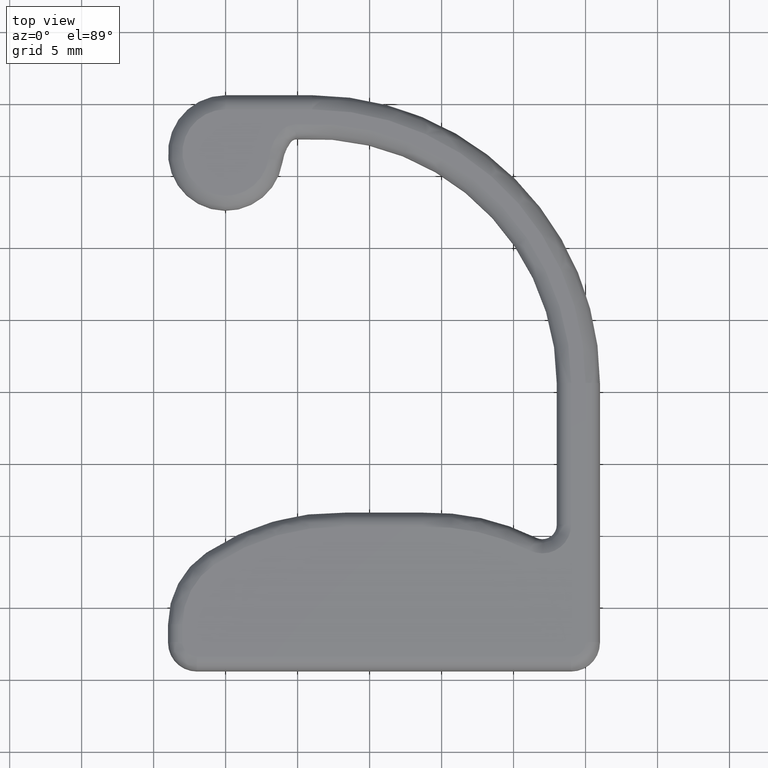
[diagram: clean part render]
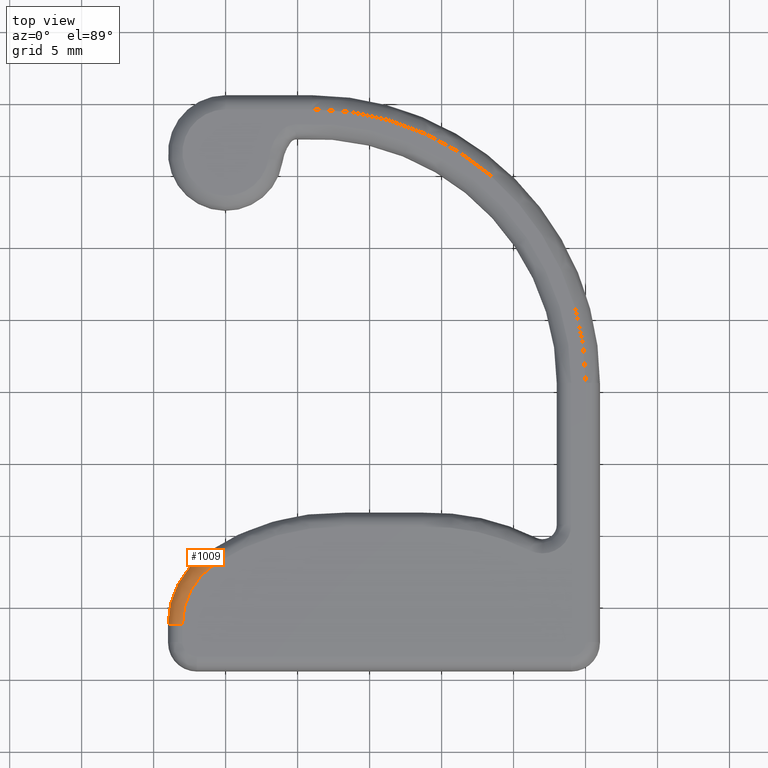
[diagram: same view with one face highlighted and labeled with its STEP entity id]
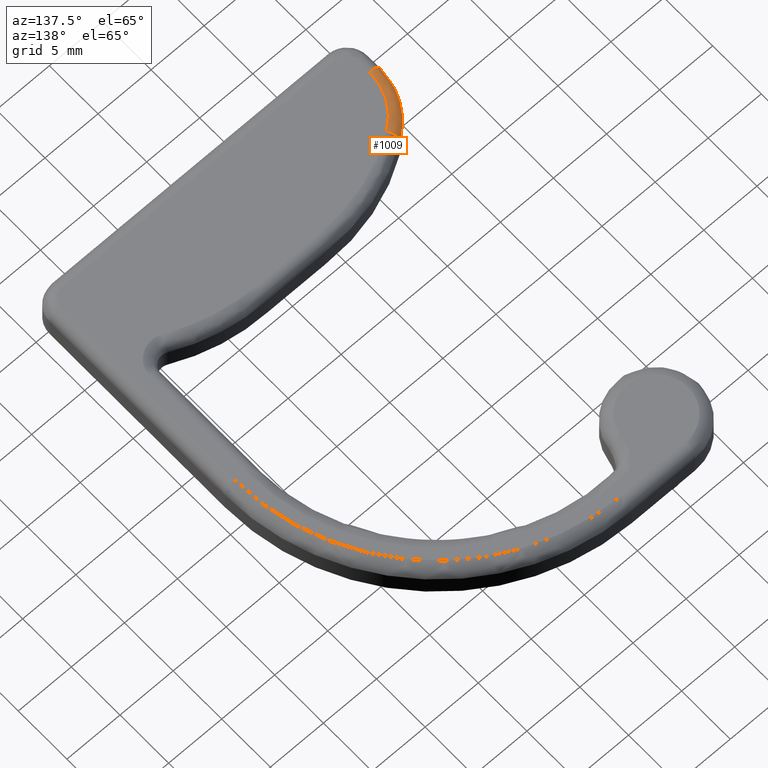
[diagram: same view with one face highlighted and labeled with its STEP entity id]
A machine part, top view. The second image highlights one B-rep face of the part: STEP entity #1009.
A second angle (auxiliary view) of the same face is appended — the face is thin or edge-on in the first view.
In plain terms, the highlighted face is a freeform B-spline surface patch.
Its self-contained STEP definition (entity closure, byte-faithful):
#394=CARTESIAN_POINT('',(-1.348833711089782,3.710987867078075,2.0));
#395=VERTEX_POINT('',#394);
#403=CARTESIAN_POINT('',(-0.790694796352597,2.881240344119419,3.0));
#404=VERTEX_POINT('',#403);
#405=CARTESIAN_POINT('',(-0.790694796351432,2.881240344117601,2.0));
#406=DIRECTION('',(0.829747522958657,0.558138914737158,0.0));
#407=DIRECTION('',(-0.558138914737158,0.829747522958657,0.0));
#408=AXIS2_PLACEMENT_3D('',#405,#406,#407);
#409=CIRCLE('',#408,0.999999999999998);
#410=EDGE_CURVE('',#395,#404,#409,.T.);
#429=CARTESIAN_POINT('',(-3.000000222665562,-1.267496392306725,3.0));
#430=VERTEX_POINT('',#429);
#431=CARTESIAN_POINT('',(1.999999777334381,-1.267497270675676,3.0));
#432=DIRECTION('',(0.0,0.0,1.0));
#433=DIRECTION('',(1.0,0.0,0.0));
#434=AXIS2_PLACEMENT_3D('',#431,#432,#433);
#435=CIRCLE('',#434,5.000000000000002);
#436=EDGE_CURVE('',#404,#430,#435,.T.);
#895=CARTESIAN_POINT('',(-4.000000222665562,-1.267496216632935,2.0));
#896=VERTEX_POINT('',#895);
#919=CARTESIAN_POINT('',(1.999999777334381,-1.267497270675676,2.0));
#920=DIRECTION('',(0.0,0.0,1.0));
#921=DIRECTION('',(1.0,0.0,0.0));
#922=AXIS2_PLACEMENT_3D('',#919,#920,#921);
#923=CIRCLE('',#922,6.000000000000002);
#924=EDGE_CURVE('',#395,#896,#923,.T.);
#947=CARTESIAN_POINT('',(-1.348833711088576,3.710987867076264,2.0));
#948=CARTESIAN_POINT('',(-1.348833711088576,3.710987867076264,2.130060214677419));
#949=CARTESIAN_POINT('',(-1.319788845063066,3.667808821496395,2.393027817343275));
#950=CARTESIAN_POINT('',(-1.195575971497251,3.483149910534511,2.725412911472946));
#951=CARTESIAN_POINT('',(-1.010058915784909,3.207354202012036,2.947961223884222));
#952=CARTESIAN_POINT('',(-0.863286463421957,2.989157485081664,3.0));
#953=CARTESIAN_POINT('',(-0.790694796351421,2.881240344117605,3.0));
#954=CARTESIAN_POINT('',(-1.753840066935068,3.438555830029886,2.0));
#955=CARTESIAN_POINT('',(-1.753840066935068,3.438555830029886,2.130060214677419));
#956=CARTESIAN_POINT('',(-1.721282528396663,3.397739622747122,2.393027817343275));
#957=CARTESIAN_POINT('',(-1.582047407995936,3.223185593467143,2.725412911472946));
#958=CARTESIAN_POINT('',(-1.374094006331735,2.962481942990934,2.947961223884222));
#959=CARTESIAN_POINT('',(-1.209570962225218,2.756225359339140,3.0));
#960=CARTESIAN_POINT('',(-1.128200092890163,2.654213646578957,3.0));
#961=CARTESIAN_POINT('',(-2.500175408054545,2.791561378055450,2.000000000000000));
#962=CARTESIAN_POINT('',(-2.500175408054545,2.791561378055450,2.130060214677418));
#963=CARTESIAN_POINT('',(-2.461144806562174,2.756356637345096,2.393027817343276));
#964=CARTESIAN_POINT('',(-2.294227074384939,2.605800528636178,2.725412911472946));
#965=CARTESIAN_POINT('',(-2.044928548952356,2.380938763463450,2.947961223884222));
#966=CARTESIAN_POINT('',(-1.847695168939339,2.203038609807294,3.000000000000000));
#967=CARTESIAN_POINT('',(-1.750146210489727,2.115051603266926,3.000000000000000));
#968=CARTESIAN_POINT('',(-3.348868951391474,1.580908270043435,2.0));
#969=CARTESIAN_POINT('',(-3.348868951391474,1.580908270043435,2.130060214677419));
#970=CARTESIAN_POINT('',(-3.302477521016996,1.556203680340031,2.393027817343274));
#971=CARTESIAN_POINT('',(-3.104080569535770,1.450552372648370,2.725412911472947));
#972=CARTESIAN_POINT('',(-2.807766530221638,1.292757782019802,2.947961223884220));
#973=CARTESIAN_POINT('',(-2.573336665793737,1.167918052609293,3.000000000000000));
#974=CARTESIAN_POINT('',(-2.457390829937168,1.106174013256913,3.000000000000000));
#975=CARTESIAN_POINT('',(-3.879716718118845,0.200994386135638,2.000000000000000));
#976=CARTESIAN_POINT('',(-3.879716718118845,0.200994386135638,2.130060214677418));
#977=CARTESIAN_POINT('',(-3.828721176396990,0.188257968042855,2.393027817343277));
#978=CARTESIAN_POINT('',(-3.610634345810349,0.133789578040622,2.725412911472946));
#979=CARTESIAN_POINT('',(-3.284912659010848,0.052438788444310,2.947961223884222));
#980=CARTESIAN_POINT('',(-3.027216833816810,-0.011922166643439,3.000000000000000));
#981=CARTESIAN_POINT('',(-2.899763968876642,-0.043754223332919,3.000000000000000));
#982=CARTESIAN_POINT('',(-4.000000136917756,-0.779388274590100,2.0));
#983=CARTESIAN_POINT('',(-4.000000136917756,-0.779388274590100,2.130060214677419));
#984=CARTESIAN_POINT('',(-3.947961361545679,-0.783621707051332,2.393027817343277));
#985=CARTESIAN_POINT('',(-3.725413052314912,-0.801726345943267,2.725412911472946));
#986=CARTESIAN_POINT('',(-3.393027962935459,-0.828766371711510,2.947961223884222));
#987=CARTESIAN_POINT('',(-3.130060364027755,-0.850159180468221,3.0));
#988=CARTESIAN_POINT('',(-3.000000151209067,-0.860739773937700,3.0));
#989=CARTESIAN_POINT('',(-4.000000222665529,-1.267496216632929,2.0));
#990=CARTESIAN_POINT('',(-4.000000222665529,-1.267496216632929,2.130060214677419));
#991=CARTESIAN_POINT('',(-3.947961446549750,-1.267496225774779,2.393027817343276));
#992=CARTESIAN_POINT('',(-3.725413134138479,-1.267496264870685,2.725412911472946));
#993=CARTESIAN_POINT('',(-3.393028040008812,-1.267496323262037,2.947961223884222));
#994=CARTESIAN_POINT('',(-3.130060437342961,-1.267496369458553,3.0));
#995=CARTESIAN_POINT('',(-3.000000222665544,-1.267496392306725,3.0));
#996=B_SPLINE_SURFACE_WITH_KNOTS('',3,3,((#947,#954,#961,#968,#975,#982,#989),(#948,#955,#962,#969,#976,#983,#990),(#949,#956,#963,#970,#977,#984,#991),(#950,#957,#964,#971,#978,#985,#992),(#951,#958,#965,#972,#979,#986,#993),(#952,#959,#966,#973,#980,#987,#994),(#953,#960,#967,#974,#981,#988,#995)),.UNSPECIFIED.,.F.,.F.,.U.,(4,1,1,1,4),(4,1,1,1,4),(0.0,0.390180644032257,0.780361288064513,1.170541932096770,1.560722576129026),(0.0,1.367369468881845,2.734738937763689,4.102108406645534,5.469477875527380),.UNSPECIFIED.);
#997=ORIENTED_EDGE('',*,*,#924,.T.);
#998=CARTESIAN_POINT('',(-3.000000222665563,-1.267496392306612,2.0));
#999=DIRECTION('',(0.000000175673904,0.999999999999985,0.0));
#1000=DIRECTION('',(-0.999999999999985,0.000000175673904,0.0));
#1001=AXIS2_PLACEMENT_3D('',#998,#999,#1000);
#1002=CIRCLE('',#1001,1.000000000000001);
#1003=EDGE_CURVE('',#896,#430,#1002,.T.);
#1004=ORIENTED_EDGE('',*,*,#1003,.T.);
#1005=ORIENTED_EDGE('',*,*,#436,.F.);
#1006=ORIENTED_EDGE('',*,*,#410,.F.);
#1007=EDGE_LOOP('',(#997,#1004,#1005,#1006));
#1008=FACE_OUTER_BOUND('',#1007,.T.);
#1009=ADVANCED_FACE('',(#1008),#996,.F.);